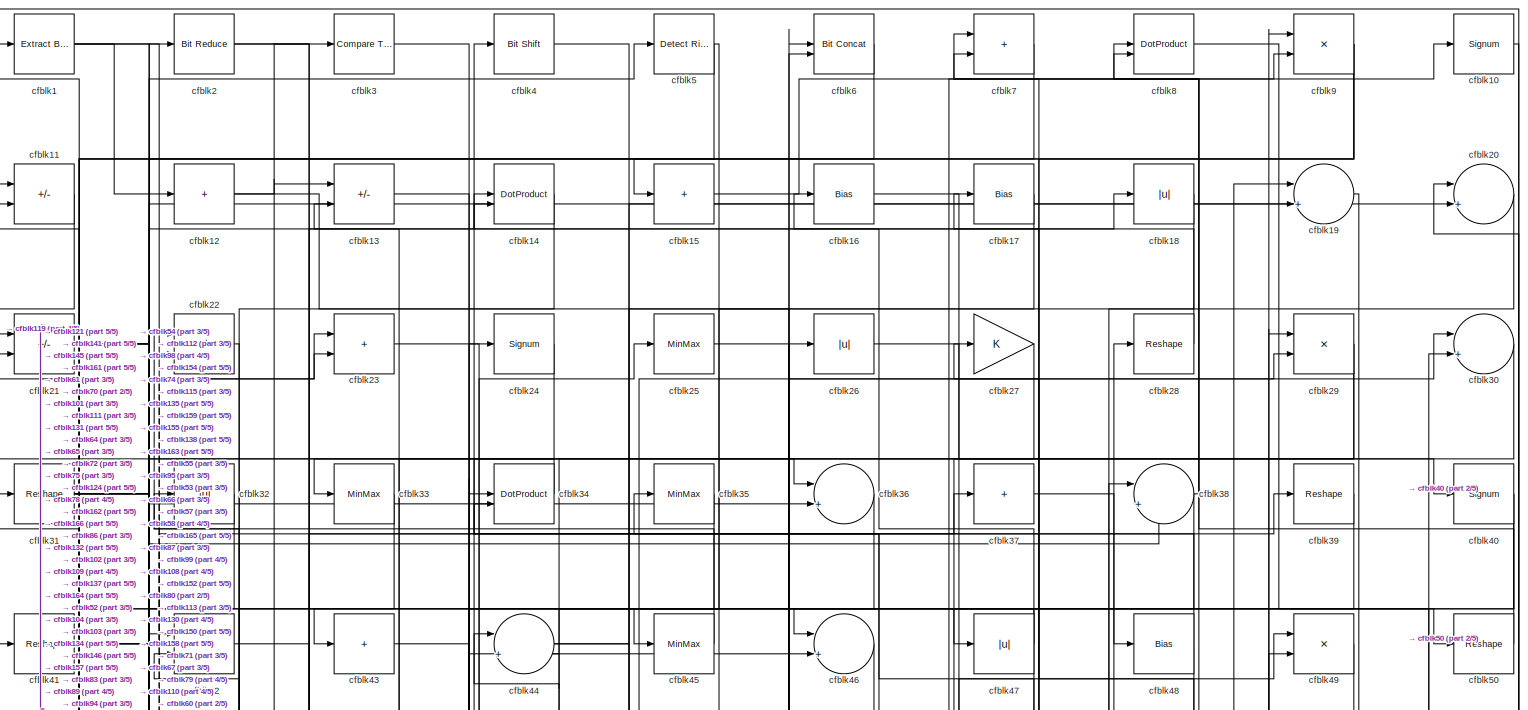
[diagram: root canvas - part 1/5, full width, top band]
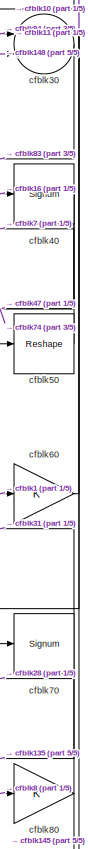
[diagram: root canvas - part 2/5, top right region]
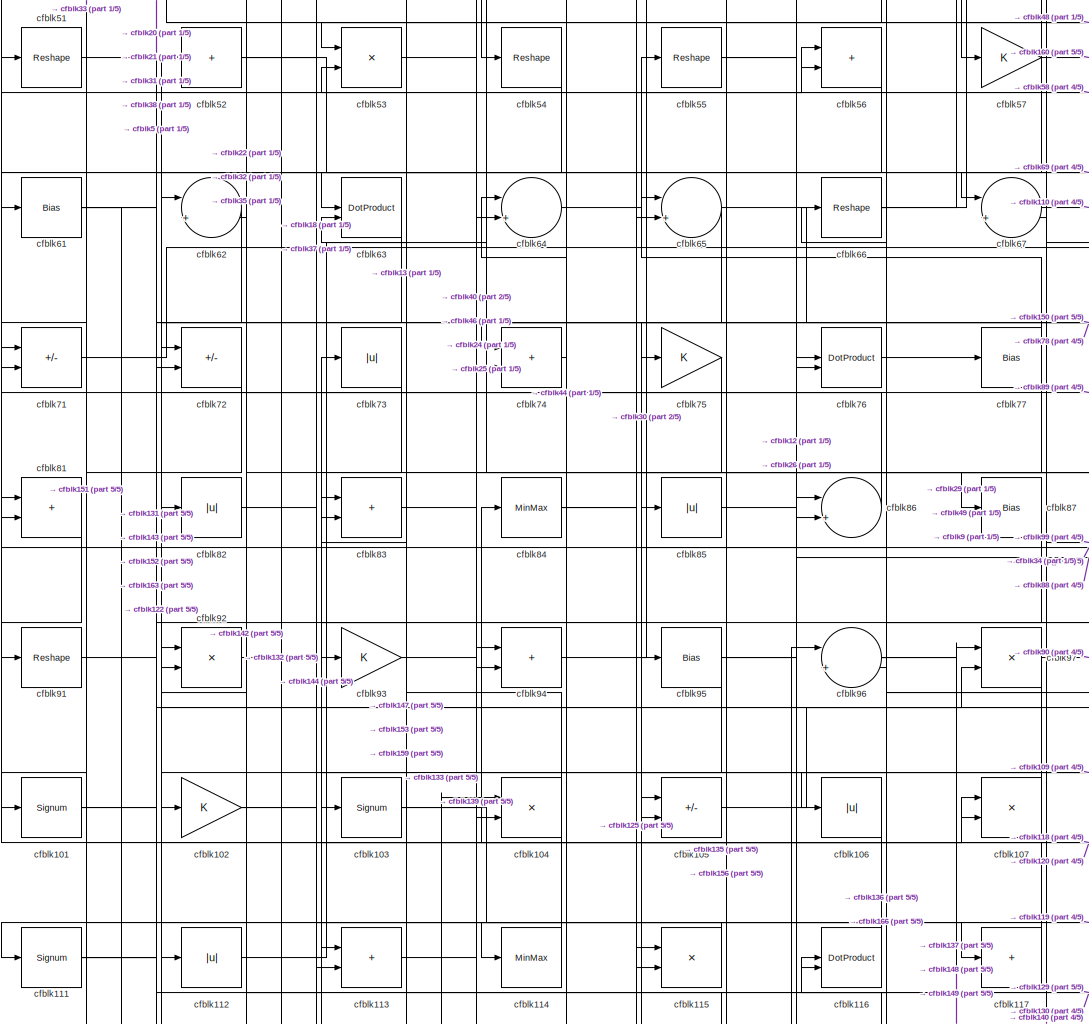
[diagram: root canvas - part 3/5, central region]
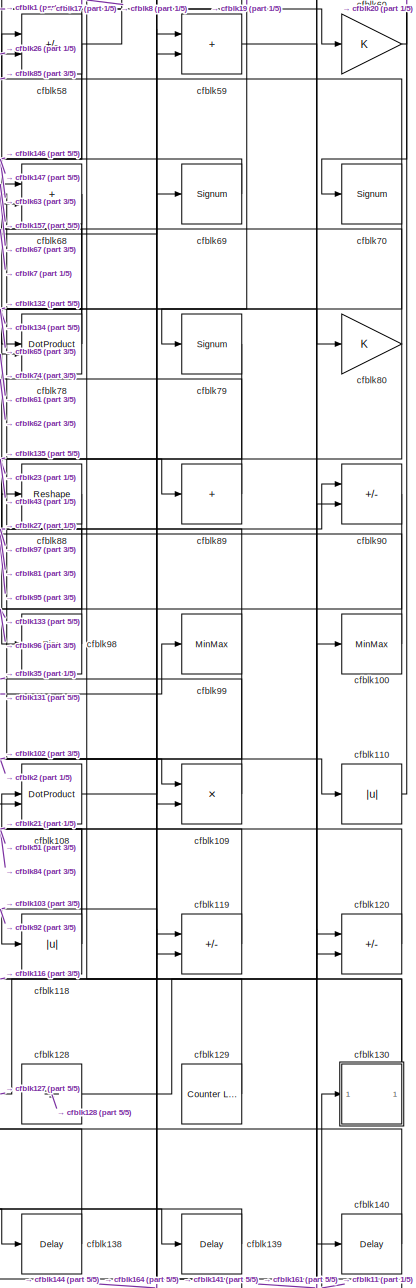
[diagram: root canvas - part 4/5, middle right region]
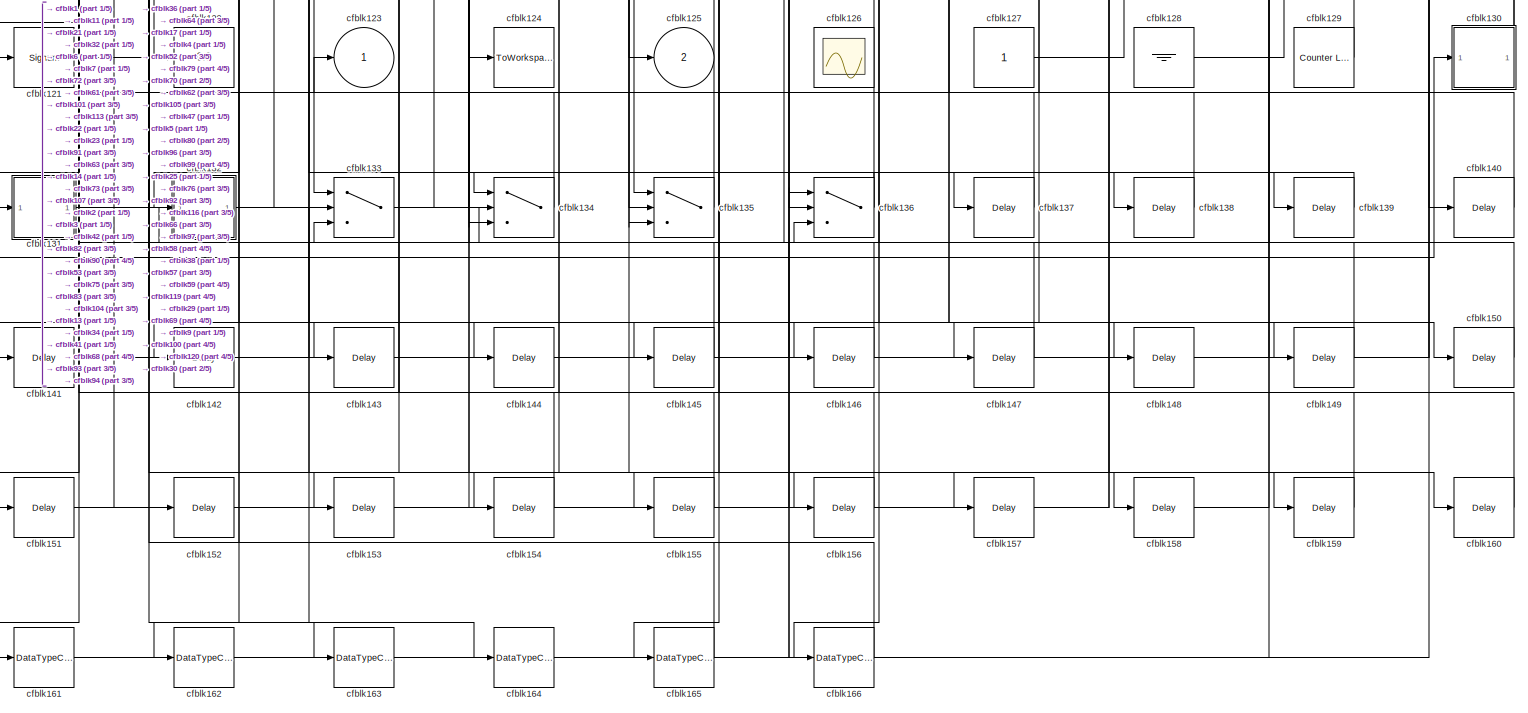
[diagram: root canvas - part 5/5, full width, bottom band]
MODEL slx_22ccf0d1c4fd
KIND model
CONFIG AbsTol = auto
CONFIG EnableMultiTasking = off
CONFIG FixedStep = auto
CONFIG MaxStep = auto
CONFIG MinStep = auto
CONFIG RelTol = 1e-3
CONFIG SampleTimeConstraint = Unconstrained
CONFIG SolverName = VariableStepAuto
CONFIG StartTime = 0.0
CONFIG StopTime = 10.0
BLOCK [Reference] cfblk1  REF=simulink/Logic and Bit
Operations/Extract Bits
  LibrarySourceBlock = hdlsllib/Logic and Bit\nOperations/Extract Bits
  SourceBlock = simulink/Logic and Bit\nOperations/Extract Bits
  SourceType = Extract Bits
BLOCK [Signum] cfblk10
BLOCK [MinMax] cfblk100
BLOCK [Signum] cfblk101
BLOCK [Gain] cfblk102
BLOCK [Signum] cfblk103
BLOCK [Product] cfblk104
  Inputs = */
  RndMeth = Zero
  SaturateOnIntegerOverflow = on
BLOCK [Sum] cfblk105
  IconShape = rectangular
  Inputs = +-
BLOCK [Abs] cfblk106
  SaturateOnIntegerOverflow = off
BLOCK [Product] cfblk107
  Inputs = */
  RndMeth = Zero
  SaturateOnIntegerOverflow = on
BLOCK [DotProduct] cfblk108
  OutDataTypeStr = Inherit: Inherit via internal rule
BLOCK [Product] cfblk109
  Inputs = */
  RndMeth = Zero
  SaturateOnIntegerOverflow = on
BLOCK [Sum] cfblk11
  IconShape = rectangular
  Inputs = +-
BLOCK [Abs] cfblk110
  SaturateOnIntegerOverflow = off
BLOCK [Signum] cfblk111
BLOCK [Abs] cfblk112
  SaturateOnIntegerOverflow = off
BLOCK [Sum] cfblk113
  IconShape = rectangular
BLOCK [MinMax] cfblk114
BLOCK [Product] cfblk115
  Inputs = */
  RndMeth = Zero
  SaturateOnIntegerOverflow = on
BLOCK [DotProduct] cfblk116
  OutDataTypeStr = Inherit: Inherit via internal rule
BLOCK [Sum] cfblk117
  IconShape = rectangular
  Inputs = +
BLOCK [Abs] cfblk118
  SaturateOnIntegerOverflow = off
BLOCK [Sum] cfblk119
  IconShape = rectangular
  Inputs = +-
BLOCK [Sum] cfblk12
  IconShape = rectangular
  Inputs = +
BLOCK [Sum] cfblk120
  IconShape = rectangular
  Inputs = +-
BLOCK [Signum] cfblk121
BLOCK [Display] cfblk122
  Decimation = 1
BLOCK [Outport] cfblk123
  VectorParamsAs1DForOutWhenUnconnected = off
BLOCK [ToWorkspace] cfblk124
  MaxDataPoints = inf
  SampleTime = -1
  SaveFormat = Timeseries
  VariableName = simout
BLOCK [Outport] cfblk125
  Port = 2
  VectorParamsAs1DForOutWhenUnconnected = off
BLOCK [Scope] cfblk126
  Floating = on
  NumInputPorts = 1
  ScopeSpecificationString = Simulink.scopes.TimeScopeBlockCfg('CurrentConfiguration', extmgr.ConfigurationSet(extmgr.Configuration('Core','General UI',true,'FigureColor',[0.156862745098039 0.156862745098039 0.156862745098039]),extmgr.Configuration('Core','Source UI',true),extmgr.Configuration('Sources','WiredSimulink',true,'DataLoggingVariableName','ScopeData1','DataLoggingSaveFormat','StructureWithTime','DataLoggingLimitDat...<+2713ch>
BLOCK [Constant] cfblk127
  SampleTime = -1
BLOCK [Ground] cfblk128
BLOCK [Reference] cfblk129  REF=hdlsllib/Sources/Counter
Limited
  SourceBlock = hdlsllib/Sources/Counter\nLimited
  SourceType = Counter Limited
BLOCK [Sum] cfblk13
  IconShape = rectangular
  Inputs = +-
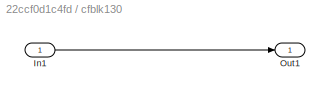
BLOCK [SubSystem] cfblk130
  LibrarySourceBlock = hdlsllib/Ports &\nSubsystems/Subsystem
BLOCK [Inport] cfblk130/In1
BLOCK [Outport] cfblk130/Out1
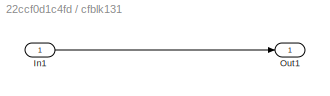
BLOCK [SubSystem] cfblk131
  LibrarySourceBlock = hdlsllib/Ports &\nSubsystems/Subsystem
BLOCK [Inport] cfblk131/In1
BLOCK [Outport] cfblk131/Out1
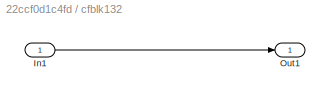
BLOCK [SubSystem] cfblk132
  LibrarySourceBlock = hdlsllib/Ports &\nSubsystems/Subsystem
BLOCK [Inport] cfblk132/In1
BLOCK [Outport] cfblk132/Out1
BLOCK [Switch] cfblk133
  InputSameDT = off
  SaturateOnIntegerOverflow = off
BLOCK [Switch] cfblk134
  InputSameDT = off
  SaturateOnIntegerOverflow = off
BLOCK [Switch] cfblk135
  InputSameDT = off
  SaturateOnIntegerOverflow = off
BLOCK [Switch] cfblk136
  InputSameDT = off
  SaturateOnIntegerOverflow = off
BLOCK [Delay] cfblk137
  InputPortMap = u0
  SampleTime = 1
BLOCK [Delay] cfblk138
  InputPortMap = u0
  SampleTime = 1
BLOCK [Delay] cfblk139
  InputPortMap = u0
  SampleTime = 1
BLOCK [DotProduct] cfblk14
  OutDataTypeStr = Inherit: Inherit via internal rule
BLOCK [Delay] cfblk140
  InputPortMap = u0
  SampleTime = 1
BLOCK [Delay] cfblk141
  InputPortMap = u0
  SampleTime = 1
BLOCK [Delay] cfblk142
  InputPortMap = u0
  SampleTime = 1
BLOCK [Delay] cfblk143
  InputPortMap = u0
  SampleTime = 1
BLOCK [Delay] cfblk144
  InputPortMap = u0
  SampleTime = 1
BLOCK [Delay] cfblk145
  InputPortMap = u0
  SampleTime = 1
BLOCK [Delay] cfblk146
  InputPortMap = u0
  SampleTime = 1
BLOCK [Delay] cfblk147
  InputPortMap = u0
  SampleTime = 1
BLOCK [Delay] cfblk148
  InputPortMap = u0
  SampleTime = 1
BLOCK [Delay] cfblk149
  InputPortMap = u0
  SampleTime = 1
BLOCK [Sum] cfblk15
  IconShape = rectangular
  Inputs = +
BLOCK [Delay] cfblk150
  InputPortMap = u0
  SampleTime = 1
BLOCK [Delay] cfblk151
  InputPortMap = u0
  SampleTime = 1
BLOCK [Delay] cfblk152
  InputPortMap = u0
  SampleTime = 1
BLOCK [Delay] cfblk153
  InputPortMap = u0
  SampleTime = 1
BLOCK [Delay] cfblk154
  InputPortMap = u0
  SampleTime = 1
BLOCK [Delay] cfblk155
  InputPortMap = u0
  SampleTime = 1
BLOCK [Delay] cfblk156
  InputPortMap = u0
  SampleTime = 1
BLOCK [Delay] cfblk157
  InputPortMap = u0
  SampleTime = 1
BLOCK [Delay] cfblk158
  InputPortMap = u0
  SampleTime = 1
BLOCK [Delay] cfblk159
  InputPortMap = u0
  SampleTime = 1
BLOCK [Bias] cfblk16
  Bias = 0.0
  SaturateOnIntegerOverflow = off
BLOCK [Delay] cfblk160
  InputPortMap = u0
  SampleTime = 1
BLOCK [DataTypeConversion] cfblk161
  OutDataTypeStr = uint8
  RndMeth = Floor
  SaturateOnIntegerOverflow = off
BLOCK [DataTypeConversion] cfblk162
  OutDataTypeStr = uint8
  RndMeth = Floor
  SaturateOnIntegerOverflow = off
BLOCK [DataTypeConversion] cfblk163
  OutDataTypeStr = uint8
  RndMeth = Floor
  SaturateOnIntegerOverflow = off
BLOCK [DataTypeConversion] cfblk164
  OutDataTypeStr = uint8
  RndMeth = Floor
  SaturateOnIntegerOverflow = off
BLOCK [DataTypeConversion] cfblk165
  OutDataTypeStr = uint8
  RndMeth = Floor
  SaturateOnIntegerOverflow = off
BLOCK [DataTypeConversion] cfblk166
  OutDataTypeStr = uint8
  RndMeth = Floor
  SaturateOnIntegerOverflow = off
BLOCK [Bias] cfblk17
  Bias = 0.0
  SaturateOnIntegerOverflow = off
BLOCK [Abs] cfblk18
  SaturateOnIntegerOverflow = off
BLOCK [Sum] cfblk19
  Inputs = |++
BLOCK [Reference] cfblk2  REF=hdlsllib/Logic and Bit
Operations/Bit Reduce
  SourceBlock = hdlsllib/Logic and Bit\nOperations/Bit Reduce
  SourceType = Bit Reduce
BLOCK [Sum] cfblk20
  Inputs = |++
BLOCK [Sum] cfblk21
  IconShape = rectangular
  Inputs = +-
BLOCK [Sum] cfblk22
  IconShape = rectangular
  Inputs = +-
BLOCK [Sum] cfblk23
  IconShape = rectangular
BLOCK [Signum] cfblk24
BLOCK [MinMax] cfblk25
BLOCK [Abs] cfblk26
  SaturateOnIntegerOverflow = off
BLOCK [Gain] cfblk27
BLOCK [Reshape] cfblk28
BLOCK [Product] cfblk29
  Inputs = */
  RndMeth = Zero
  SaturateOnIntegerOverflow = on
BLOCK [Reference] cfblk3  REF=hdlsllib/Logic and Bit
Operations/Compare
To Zero
  SourceBlock = hdlsllib/Logic and Bit\nOperations/Compare\nTo Zero
  SourceType = Compare To Zero
BLOCK [Sum] cfblk30
  Inputs = |++
BLOCK [Reshape] cfblk31
BLOCK [Abs] cfblk32
  SaturateOnIntegerOverflow = off
BLOCK [MinMax] cfblk33
BLOCK [DotProduct] cfblk34
  OutDataTypeStr = Inherit: Inherit via internal rule
BLOCK [MinMax] cfblk35
BLOCK [Sum] cfblk36
  Inputs = |++
BLOCK [Sum] cfblk37
  IconShape = rectangular
  Inputs = +
BLOCK [Sum] cfblk38
  Inputs = |++
BLOCK [Reshape] cfblk39
BLOCK [Reference] cfblk4  REF=hdlsllib/Logic and Bit
Operations/Bit Shift
  SourceBlock = hdlsllib/Logic and Bit\nOperations/Bit Shift
  SourceType = Bit Shift
BLOCK [Signum] cfblk40
BLOCK [Reshape] cfblk41
BLOCK [Product] cfblk42
  Inputs = */
  RndMeth = Zero
  SaturateOnIntegerOverflow = on
BLOCK [Sum] cfblk43
  IconShape = rectangular
  Inputs = +
BLOCK [Sum] cfblk44
  Inputs = |++
BLOCK [MinMax] cfblk45
BLOCK [Sum] cfblk46
  Inputs = |++
BLOCK [Abs] cfblk47
  SaturateOnIntegerOverflow = off
BLOCK [Bias] cfblk48
  Bias = 0.0
  SaturateOnIntegerOverflow = off
BLOCK [Product] cfblk49
  Inputs = */
  RndMeth = Zero
  SaturateOnIntegerOverflow = on
BLOCK [Reference] cfblk5  REF=hdlsllib/Logic and Bit
Operations/Detect Rise
Positive
  SourceBlock = hdlsllib/Logic and Bit\nOperations/Detect Rise\nPositive
  SourceType = Detect Rise Positive
BLOCK [Reshape] cfblk50
BLOCK [Reshape] cfblk51
BLOCK [Sum] cfblk52
  IconShape = rectangular
  Inputs = +
BLOCK [Product] cfblk53
  Inputs = */
  RndMeth = Zero
  SaturateOnIntegerOverflow = on
BLOCK [Reshape] cfblk54
BLOCK [Reshape] cfblk55
BLOCK [Sum] cfblk56
  IconShape = rectangular
BLOCK [Gain] cfblk57
BLOCK [Sum] cfblk58
  IconShape = rectangular
  Inputs = +-
BLOCK [Sum] cfblk59
  IconShape = rectangular
BLOCK [Reference] cfblk6  REF=hdlsllib/Logic and Bit
Operations/Bit Concat
  SourceBlock = hdlsllib/Logic and Bit\nOperations/Bit Concat
  SourceType = Bit Concat
BLOCK [Gain] cfblk60
BLOCK [Bias] cfblk61
  Bias = 0.0
  SaturateOnIntegerOverflow = off
BLOCK [Sum] cfblk62
  Inputs = |++
BLOCK [DotProduct] cfblk63
  OutDataTypeStr = Inherit: Inherit via internal rule
BLOCK [Sum] cfblk64
  Inputs = |++
BLOCK [Sum] cfblk65
  Inputs = |++
BLOCK [Reshape] cfblk66
BLOCK [Sum] cfblk67
  Inputs = |++
BLOCK [Sum] cfblk68
  IconShape = rectangular
BLOCK [Signum] cfblk69
BLOCK [Sum] cfblk7
  IconShape = rectangular
BLOCK [Signum] cfblk70
BLOCK [Sum] cfblk71
  IconShape = rectangular
  Inputs = +-
BLOCK [Sum] cfblk72
  IconShape = rectangular
  Inputs = +-
BLOCK [Abs] cfblk73
  SaturateOnIntegerOverflow = off
BLOCK [Sum] cfblk74
  IconShape = rectangular
BLOCK [Gain] cfblk75
BLOCK [DotProduct] cfblk76
  OutDataTypeStr = Inherit: Inherit via internal rule
BLOCK [Bias] cfblk77
  Bias = 0.0
  SaturateOnIntegerOverflow = off
BLOCK [DotProduct] cfblk78
  OutDataTypeStr = Inherit: Inherit via internal rule
BLOCK [Signum] cfblk79
BLOCK [DotProduct] cfblk8
  OutDataTypeStr = Inherit: Inherit via internal rule
BLOCK [Gain] cfblk80
BLOCK [Sum] cfblk81
  IconShape = rectangular
BLOCK [Abs] cfblk82
  SaturateOnIntegerOverflow = off
BLOCK [Sum] cfblk83
  IconShape = rectangular
BLOCK [MinMax] cfblk84
BLOCK [Abs] cfblk85
  SaturateOnIntegerOverflow = off
BLOCK [Sum] cfblk86
  Inputs = |++
BLOCK [Bias] cfblk87
  Bias = 0.0
  SaturateOnIntegerOverflow = off
BLOCK [Reshape] cfblk88
BLOCK [Sum] cfblk89
  IconShape = rectangular
  Inputs = +
BLOCK [Product] cfblk9
  Inputs = */
  RndMeth = Zero
  SaturateOnIntegerOverflow = on
BLOCK [Sum] cfblk90
  IconShape = rectangular
  Inputs = +-
BLOCK [Reshape] cfblk91
BLOCK [Product] cfblk92
  Inputs = */
  RndMeth = Zero
  SaturateOnIntegerOverflow = on
BLOCK [Gain] cfblk93
BLOCK [Sum] cfblk94
  IconShape = rectangular
BLOCK [Bias] cfblk95
  Bias = 0.0
  SaturateOnIntegerOverflow = off
BLOCK [Sum] cfblk96
  Inputs = |++
BLOCK [Product] cfblk97
  Inputs = */
  RndMeth = Zero
  SaturateOnIntegerOverflow = on
BLOCK [Bias] cfblk98
  Bias = 0.0
  SaturateOnIntegerOverflow = off
BLOCK [MinMax] cfblk99
LINE cfblk100:1 -> cfblk81:2
NET cfblk101:1 -> cfblk143:1, cfblk38:2
NET cfblk102:1 -> cfblk117:1, cfblk37:1
NET cfblk103:1 -> cfblk118:1, cfblk24:1
NET cfblk104:1 -> cfblk131:1, cfblk13:2
LINE cfblk105:1 -> cfblk97:2
LINE cfblk106:1 -> cfblk111:1
LINE cfblk107:1 -> cfblk85:1
LINE cfblk108:1 -> cfblk59:1
LINE cfblk109:1 -> cfblk35:1
LINE cfblk10:1 -> cfblk70:1
LINE cfblk110:1 -> cfblk20:1
NET cfblk111:1 -> cfblk20:2, cfblk56:2, cfblk5:1
LINE cfblk112:1 -> cfblk25:1
LINE cfblk113:1 -> cfblk107:2
LINE cfblk114:1 -> cfblk73:1
LINE cfblk115:1 -> cfblk114:1
LINE cfblk116:1 -> cfblk105:1
LINE cfblk117:1 -> cfblk52:1
NET cfblk118:1 -> cfblk108:1, cfblk51:1
LINE cfblk119:1 -> cfblk21:1
LINE cfblk11:1 -> cfblk130:1
LINE cfblk120:1 -> cfblk84:1
LINE cfblk121:1 -> cfblk22:2
LINE cfblk127:1 -> cfblk59:2
LINE cfblk128:1 -> cfblk100:1
LINE cfblk129:1 -> cfblk63:2
NET cfblk12:1 -> cfblk13:1, cfblk86:1
LINE cfblk130/In1:1 -> cfblk130/Out1:1
NET cfblk130:1 -> cfblk116:1, cfblk8:2
LINE cfblk131/In1:1 -> cfblk131/Out1:1
NET cfblk131:1 -> cfblk113:1, cfblk156:1, cfblk23:2, cfblk96:1, cfblk99:1
LINE cfblk132/In1:1 -> cfblk132/Out1:1
NET cfblk132:1 -> cfblk107:1, cfblk158:1, cfblk3:1
NET cfblk133:1 -> cfblk104:1, cfblk136:3
LINE cfblk134:1 -> cfblk123:1
LINE cfblk135:1 -> cfblk62:2
NET cfblk136:1 -> cfblk134:1, cfblk92:1
LINE cfblk137:1 -> cfblk97:1
LINE cfblk138:1 -> cfblk11:2
LINE cfblk139:1 -> cfblk136:2
LINE cfblk13:1 -> cfblk134:2
LINE cfblk140:1 -> cfblk67:2
LINE cfblk141:1 -> cfblk90:2
LINE cfblk142:1 -> cfblk133:2
LINE cfblk143:1 -> cfblk136:1
LINE cfblk144:1 -> cfblk119:1
LINE cfblk145:1 -> cfblk1:1
LINE cfblk146:1 -> cfblk34:1
LINE cfblk147:1 -> cfblk53:2
LINE cfblk148:1 -> cfblk30:2
LINE cfblk149:1 -> cfblk116:2
LINE cfblk14:1 -> cfblk162:1
LINE cfblk150:1 -> cfblk9:1
LINE cfblk151:1 -> cfblk76:1
LINE cfblk152:1 -> cfblk38:1
LINE cfblk153:1 -> cfblk94:1
LINE cfblk154:1 -> cfblk21:2
LINE cfblk155:1 -> cfblk133:3
LINE cfblk156:1 -> cfblk105:2
LINE cfblk157:1 -> cfblk68:1
LINE cfblk158:1 -> cfblk29:1
LINE cfblk159:1 -> cfblk83:2
LINE cfblk15:1 -> cfblk10:1
LINE cfblk160:1 -> cfblk64:1
LINE cfblk161:1 -> cfblk120:1
LINE cfblk162:1 -> cfblk6:1
LINE cfblk163:1 -> cfblk6:2
LINE cfblk164:1 -> cfblk69:1
LINE cfblk165:1 -> cfblk42:1
LINE cfblk166:1 -> cfblk42:2
LINE cfblk16:1 -> cfblk40:1
LINE cfblk17:1 -> cfblk135:2
LINE cfblk18:1 -> cfblk45:1
LINE cfblk19:1 -> cfblk79:1
NET cfblk1:1 -> cfblk12:1, cfblk60:1, cfblk78:1
LINE cfblk20:1 -> cfblk108:2
NET cfblk21:1 -> cfblk14:2, cfblk2:1, cfblk64:2, cfblk65:2
LINE cfblk22:1 -> cfblk72:1
LINE cfblk23:1 -> cfblk98:1
LINE cfblk24:1 -> cfblk54:1
LINE cfblk25:1 -> cfblk138:1
LINE cfblk26:1 -> cfblk58:2
LINE cfblk27:1 -> cfblk44:2
LINE cfblk28:1 -> cfblk16:1
NET cfblk29:1 -> cfblk41:1, cfblk57:1
NET cfblk2:1 -> cfblk109:2, cfblk137:1
LINE cfblk30:1 -> cfblk83:1
NET cfblk31:1 -> cfblk36:1, cfblk36:2, cfblk50:1, cfblk75:1
LINE cfblk32:1 -> cfblk141:1
LINE cfblk33:1 -> cfblk101:1
LINE cfblk34:1 -> cfblk33:1
LINE cfblk35:1 -> cfblk112:1
LINE cfblk36:1 -> cfblk154:1
LINE cfblk37:1 -> cfblk48:1
NET cfblk38:1 -> cfblk8:1, cfblk94:2
LINE cfblk39:1 -> cfblk46:1
LINE cfblk3:1 -> cfblk157:1
NET cfblk40:1 -> cfblk47:1, cfblk74:2
NET cfblk41:1 -> cfblk124:1, cfblk23:1, cfblk39:1
LINE cfblk42:1 -> cfblk164:1
LINE cfblk43:1 -> cfblk89:1
NET cfblk44:1 -> cfblk115:1, cfblk19:2
LINE cfblk45:1 -> cfblk22:1
LINE cfblk46:1 -> cfblk53:1
NET cfblk47:1 -> cfblk14:1, cfblk165:1, cfblk43:1
NET cfblk48:1 -> cfblk113:2, cfblk4:1
LINE cfblk49:1 -> cfblk67:1
LINE cfblk4:1 -> cfblk159:1
LINE cfblk50:1 -> cfblk7:1
LINE cfblk51:1 -> cfblk95:1
NET cfblk52:1 -> cfblk125:1, cfblk18:1
LINE cfblk53:1 -> cfblk76:2
LINE cfblk54:1 -> cfblk81:1
NET cfblk55:1 -> cfblk29:2, cfblk86:2
LINE cfblk56:1 -> cfblk71:1
NET cfblk57:1 -> cfblk115:2, cfblk160:1, cfblk34:2
NET cfblk58:1 -> cfblk146:1, cfblk147:1, cfblk17:1, cfblk19:1
LINE cfblk59:1 -> cfblk140:1
NET cfblk5:1 -> cfblk155:1, cfblk15:1
LINE cfblk60:1 -> cfblk11:1
NET cfblk61:1 -> cfblk150:1, cfblk152:1, cfblk78:2
LINE cfblk62:1 -> cfblk82:1
LINE cfblk63:1 -> cfblk122:1
LINE cfblk64:1 -> cfblk55:1
NET cfblk65:1 -> cfblk120:2, cfblk93:1
NET cfblk66:1 -> cfblk166:1, cfblk49:1, cfblk9:2
LINE cfblk67:1 -> cfblk110:1
NET cfblk68:1 -> cfblk132:1, cfblk134:3
LINE cfblk69:1 -> cfblk63:1
LINE cfblk6:1 -> cfblk161:1
NET cfblk70:1 -> cfblk135:1, cfblk31:1
LINE cfblk71:1 -> cfblk49:2
LINE cfblk72:1 -> cfblk151:1
LINE cfblk73:1 -> cfblk142:1
LINE cfblk74:1 -> cfblk44:1
LINE cfblk75:1 -> cfblk153:1
LINE cfblk76:1 -> cfblk77:1
NET cfblk77:1 -> cfblk103:1, cfblk65:1
NET cfblk78:1 -> cfblk74:1, cfblk7:2
LINE cfblk79:1 -> cfblk135:3
LINE cfblk7:1 -> cfblk121:1
NET cfblk80:1 -> cfblk145:1, cfblk28:1
LINE cfblk81:1 -> cfblk91:1
LINE cfblk82:1 -> cfblk144:1
LINE cfblk83:1 -> cfblk46:2
NET cfblk84:1 -> cfblk109:1, cfblk56:1
LINE cfblk85:1 -> cfblk58:1
NET cfblk86:1 -> cfblk32:1, cfblk71:2
LINE cfblk87:1 -> cfblk106:1
LINE cfblk88:1 -> cfblk96:2
LINE cfblk89:1 -> cfblk62:1
LINE cfblk8:1 -> cfblk80:1
LINE cfblk90:1 -> cfblk133:1
LINE cfblk91:1 -> cfblk163:1
LINE cfblk92:1 -> cfblk119:2
LINE cfblk93:1 -> cfblk139:1
LINE cfblk94:1 -> cfblk30:1
NET cfblk95:1 -> cfblk104:2, cfblk26:1, cfblk88:1
NET cfblk96:1 -> cfblk148:1, cfblk149:1, cfblk66:1
NET cfblk97:1 -> cfblk90:1, cfblk92:2
LINE cfblk98:1 -> cfblk68:2
NET cfblk99:1 -> cfblk102:1, cfblk27:1
NET cfblk9:1 -> cfblk61:1, cfblk72:2, cfblk87:1
note: NET lines group one-source signal fan-out (src -> all destinations, sorted); 1:1 wires keep LINE
